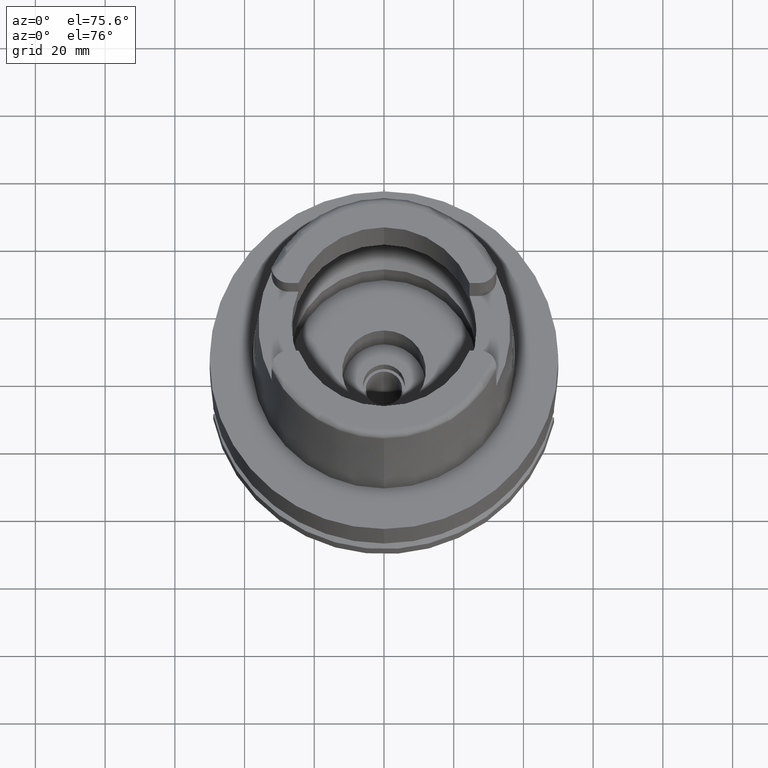
[diagram: clean part render]
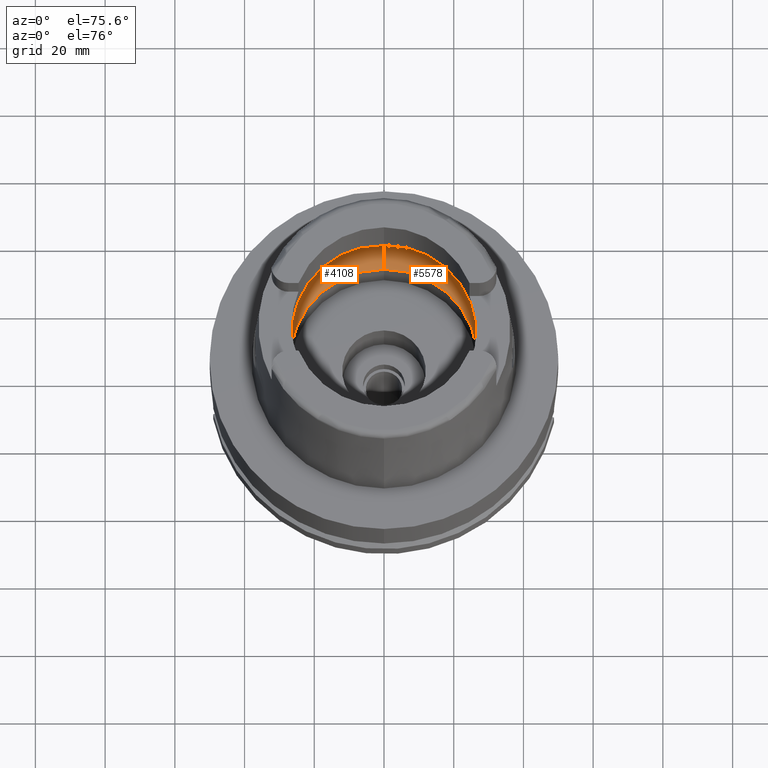
[diagram: same view with one multi-face feature highlighted, each face labeled with its STEP entity id]
A machine part, auxiliary view. The highlighted faces form ONE feature: a constant-radius fillet chain: 2 tangent blend faces with common blend radius 12 mm. The faces share edges in the B-rep.
Their STEP definitions:
[1] entity #5578 (Torus):
#360 = CARTESIAN_POINT ( 'NONE',  ( 31.40918884336000616, -2.390158196043999705, 9.496624327025999790 ) ) ;
#390 = VERTEX_POINT ( 'NONE', #919 ) ;
#447 = CARTESIAN_POINT ( 'NONE',  ( 31.40918884336000616, 2.390158196043999705, 9.496624327025999790 ) ) ;
#549 = CARTESIAN_POINT ( 'NONE',  ( 31.46287568614665986, -1.684656699965325632, 9.190219625007294724 ) ) ;
#575 = CARTESIAN_POINT ( 'NONE',  ( 31.40918884336000616, -2.390158196043999705, 9.496624327025999790 ) ) ;
#637 = CARTESIAN_POINT ( 'NONE',  ( 0.0000000000000000000, 0.0000000000000000000, 0.04993178413040000319 ) ) ;
#703 = CARTESIAN_POINT ( 'NONE',  ( 31.48971910753999026, 0.8697454017787721314, 9.000000000000001776 ) ) ;
#785 = CARTESIAN_POINT ( 'NONE',  ( 31.48971910754000447, 0.0000000000000000000, 9.000000000000000000 ) ) ;
#919 = CARTESIAN_POINT ( 'NONE',  ( 31.48971910754000447, 0.0000000000000000000, 9.000000000000000000 ) ) ;
#932 = CIRCLE ( 'NONE', #2732, 31.49999999999998934 ) ;
#1006 = CARTESIAN_POINT ( 'NONE',  ( 0.0000000000000000000, -19.50000000000000000, 9.496624327025999790 ) ) ;
#1181 = VERTEX_POINT ( 'NONE', #447 ) ;
#1224 = AXIS2_PLACEMENT_3D ( 'NONE', #5086, #2498, #2529 ) ;
#1323 = DIRECTION ( 'NONE',  ( 0.0000000000000000000, 0.0000000000000000000, 1.000000000000000000 ) ) ;
#1364 = EDGE_CURVE ( 'NONE', #5090, #4951, #4974, .T. ) ;
#1488 = VERTEX_POINT ( 'NONE', #360 ) ;
#1514 = EDGE_LOOP ( 'NONE', ( #3111, #5444, #5424, #3881, #2951, #4238, #2178 ) ) ;
#1573 = AXIS2_PLACEMENT_3D ( 'NONE', #5522, #4296, #2112 ) ;
#1604 = CARTESIAN_POINT ( 'NONE',  ( 31.46287568614665986, 1.684656700008886121, 9.190219625026216477 ) ) ;
#1658 = AXIS2_PLACEMENT_3D ( 'NONE', #5121, #1323, #4208 ) ;
#1828 = TOROIDAL_SURFACE ( 'NONE', #1658, 19.50000000000000000, 12.00000000000000000 ) ;
#1848 = EDGE_CURVE ( 'NONE', #390, #1488, #3075, .T. ) ;
#1890 = CARTESIAN_POINT ( 'NONE',  ( 31.48971910754000447, 0.0000000000000000000, 9.000000000000000000 ) ) ;
#2112 = DIRECTION ( 'NONE',  ( 0.0000000000000000000, 1.000000000000000000, 0.0000000000000000000 ) ) ;
#2178 = ORIENTED_EDGE ( 'NONE', *, *, #1848, .F. ) ;
#2293 = DIRECTION ( 'NONE',  ( -1.000000000000000000, 0.0000000000000000000, 0.0000000000000000000 ) ) ;
#2498 = DIRECTION ( 'NONE',  ( 1.000000000000000000, 0.0000000000000000000, 0.0000000000000000000 ) ) ;
#2529 = DIRECTION ( 'NONE',  ( 0.0000000000000000000, 0.6166666666667049990, -0.7872243785746061429 ) ) ;
#2537 = EDGE_CURVE ( 'NONE', #4951, #3486, #3654, .T. ) ;
#2606 = AXIS2_PLACEMENT_3D ( 'NONE', #637, #3678, #4079 ) ;
#2732 = AXIS2_PLACEMENT_3D ( 'NONE', #5235, #3933, #3991 ) ;
#2899 = VERTEX_POINT ( 'NONE', #5278 ) ;
#2950 = CARTESIAN_POINT ( 'NONE',  ( 31.40918884336000616, 2.390158196043999705, 9.496624327025999790 ) ) ;
#2951 = ORIENTED_EDGE ( 'NONE', *, *, #3897, .T. ) ;
#3034 = EDGE_CURVE ( 'NONE', #1181, #390, #4651, .T. ) ;
#3075 = B_SPLINE_CURVE_WITH_KNOTS ( 'NONE', 3,
 ( #1890, #4021, #549, #575 ),
 .UNSPECIFIED., .F., .F.,
 ( 4, 4 ),
 ( 0.0000000000000000000, 1.000000000000000000 ),
 .UNSPECIFIED. ) ;
#3111 = ORIENTED_EDGE ( 'NONE', *, *, #3034, .F. ) ;
#3486 = VERTEX_POINT ( 'NONE', #4356 ) ;
#3654 = CIRCLE ( 'NONE', #1224, 11.99999999999999822 ) ;
#3675 = CARTESIAN_POINT ( 'NONE',  ( 0.0000000000000000000, -26.89999999999999858, 0.04993178413040000319 ) ) ;
#3678 = DIRECTION ( 'NONE',  ( 0.0000000000000000000, 0.0000000000000000000, 1.000000000000000000 ) ) ;
#3881 = ORIENTED_EDGE ( 'NONE', *, *, #1364, .F. ) ;
#3897 = EDGE_CURVE ( 'NONE', #5090, #2899, #5122, .T. ) ;
#3933 = DIRECTION ( 'NONE',  ( 0.0000000000000000000, 0.0000000000000000000, -1.000000000000000000 ) ) ;
#3945 = AXIS2_PLACEMENT_3D ( 'NONE', #1006, #2293, #4977 ) ;
#3991 = DIRECTION ( 'NONE',  ( 0.9971171061384295209, -0.07587803796965221503, 0.0000000000000000000 ) ) ;
#4021 = CARTESIAN_POINT ( 'NONE',  ( 31.48971910753999026, -0.8697454017312684638, 8.999999999999998224 ) ) ;
#4079 = DIRECTION ( 'NONE',  ( 0.0000000000000000000, -1.000000000000000000, 0.0000000000000000000 ) ) ;
#4208 = DIRECTION ( 'NONE',  ( 0.0000000000000000000, 1.000000000000000000, 0.0000000000000000000 ) ) ;
#4238 = ORIENTED_EDGE ( 'NONE', *, *, #5312, .F. ) ;
#4275 = CIRCLE ( 'NONE', #1573, 31.50000000000000000 ) ;
#4296 = DIRECTION ( 'NONE',  ( 0.0000000000000000000, 0.0000000000000000000, -1.000000000000000000 ) ) ;
#4356 = CARTESIAN_POINT ( 'NONE',  ( 0.0000000000000000000, 31.50000000000000000, 9.496624327025999790 ) ) ;
#4429 = CARTESIAN_POINT ( 'NONE',  ( 0.0000000000000000000, 26.89999999999999858, 0.04993178413040000319 ) ) ;
#4651 = B_SPLINE_CURVE_WITH_KNOTS ( 'NONE', 3,
 ( #2950, #1604, #703, #785 ),
 .UNSPECIFIED., .F., .F.,
 ( 4, 4 ),
 ( 0.0000000000000000000, 1.000000000000000000 ),
 .UNSPECIFIED. ) ;
#4951 = VERTEX_POINT ( 'NONE', #4429 ) ;
#4974 = CIRCLE ( 'NONE', #2606, 26.89999999999999858 ) ;
#4977 = DIRECTION ( 'NONE',  ( 0.0000000000000000000, -0.6166666666667049990, -0.7872243785746061429 ) ) ;
#5086 = CARTESIAN_POINT ( 'NONE',  ( 0.0000000000000000000, 19.50000000000000000, 9.496624327025999790 ) ) ;
#5090 = VERTEX_POINT ( 'NONE', #3675 ) ;
#5121 = CARTESIAN_POINT ( 'NONE',  ( 0.0000000000000000000, 0.0000000000000000000, 9.496624327025999790 ) ) ;
#5122 = CIRCLE ( 'NONE', #3945, 11.99999999999999822 ) ;
#5235 = CARTESIAN_POINT ( 'NONE',  ( 0.0000000000000000000, 0.0000000000000000000, 9.496624327025999790 ) ) ;
#5278 = CARTESIAN_POINT ( 'NONE',  ( 0.0000000000000000000, -31.50000000000000000, 9.496624327025999790 ) ) ;
#5312 = EDGE_CURVE ( 'NONE', #1488, #2899, #932, .T. ) ;
#5424 = ORIENTED_EDGE ( 'NONE', *, *, #2537, .F. ) ;
#5444 = ORIENTED_EDGE ( 'NONE', *, *, #5536, .F. ) ;
#5522 = CARTESIAN_POINT ( 'NONE',  ( 0.0000000000000000000, 0.0000000000000000000, 9.496624327025999790 ) ) ;
#5536 = EDGE_CURVE ( 'NONE', #3486, #1181, #4275, .T. ) ;
#5578 = ADVANCED_FACE ( 'NONE', ( #5581 ), #1828, .F. ) ;
#5581 = FACE_OUTER_BOUND ( 'NONE', #1514, .T. ) ;
[2] entity #4108 (Torus):
#31 = EDGE_CURVE ( 'NONE', #2899, #2021, #2511, .T. ) ;
#104 = CARTESIAN_POINT ( 'NONE',  ( -31.48971910754000447, 0.8697454016785111097, 9.000000000000001776 ) ) ;
#300 = VERTEX_POINT ( 'NONE', #4122 ) ;
#367 = ORIENTED_EDGE ( 'NONE', *, *, #3897, .F. ) ;
#455 = EDGE_LOOP ( 'NONE', ( #5354, #367, #2072, #3972, #3370, #3140, #4435 ) ) ;
#702 = TOROIDAL_SURFACE ( 'NONE', #5582, 19.50000000000000000, 12.00000000000000000 ) ;
#854 = EDGE_CURVE ( 'NONE', #2021, #1708, #2129, .T. ) ;
#899 = CIRCLE ( 'NONE', #1264, 31.49999999999998934 ) ;
#920 = CARTESIAN_POINT ( 'NONE',  ( -31.48971910754000447, 0.0000000000000000000, 9.000000000000000000 ) ) ;
#925 = DIRECTION ( 'NONE',  ( 0.0000000000000000000, 0.0000000000000000000, 1.000000000000000000 ) ) ;
#1006 = CARTESIAN_POINT ( 'NONE',  ( 0.0000000000000000000, -19.50000000000000000, 9.496624327025999790 ) ) ;
#1068 = EDGE_CURVE ( 'NONE', #4951, #5090, #4430, .T. ) ;
#1070 = B_SPLINE_CURVE_WITH_KNOTS ( 'NONE', 3,
 ( #3962, #104, #1276, #2572 ),
 .UNSPECIFIED., .F., .F.,
 ( 4, 4 ),
 ( 0.0000000000000000000, 1.000000000000000000 ),
 .UNSPECIFIED. ) ;
#1113 = CARTESIAN_POINT ( 'NONE',  ( 0.0000000000000000000, 0.0000000000000000000, 9.496624327025999790 ) ) ;
#1224 = AXIS2_PLACEMENT_3D ( 'NONE', #5086, #2498, #2529 ) ;
#1264 = AXIS2_PLACEMENT_3D ( 'NONE', #1113, #4880, #2319 ) ;
#1276 = CARTESIAN_POINT ( 'NONE',  ( -31.46287568614665986, 1.684656699916923683, 9.190219624986275093 ) ) ;
#1334 = CARTESIAN_POINT ( 'NONE',  ( -31.48971910754000447, 0.0000000000000000000, 9.000000000000000000 ) ) ;
#1410 = EDGE_CURVE ( 'NONE', #300, #3486, #899, .T. ) ;
#1695 = EDGE_CURVE ( 'NONE', #1708, #300, #1070, .T. ) ;
#1708 = VERTEX_POINT ( 'NONE', #1334 ) ;
#1781 = DIRECTION ( 'NONE',  ( 0.0000000000000000000, 0.0000000000000000000, -1.000000000000000000 ) ) ;
#1816 = CARTESIAN_POINT ( 'NONE',  ( -31.40918884336000616, -2.390158196043999705, 9.496624327025999790 ) ) ;
#2021 = VERTEX_POINT ( 'NONE', #3702 ) ;
#2071 = AXIS2_PLACEMENT_3D ( 'NONE', #4149, #3263, #2295 ) ;
#2072 = ORIENTED_EDGE ( 'NONE', *, *, #1068, .F. ) ;
#2129 = B_SPLINE_CURVE_WITH_KNOTS ( 'NONE', 3,
 ( #1816, #3062, #4385, #920 ),
 .UNSPECIFIED., .F., .F.,
 ( 4, 4 ),
 ( 0.0000000000000000000, 1.000000000000000000 ),
 .UNSPECIFIED. ) ;
#2293 = DIRECTION ( 'NONE',  ( -1.000000000000000000, 0.0000000000000000000, 0.0000000000000000000 ) ) ;
#2295 = DIRECTION ( 'NONE',  ( 0.0000000000000000000, 1.000000000000000000, 0.0000000000000000000 ) ) ;
#2319 = DIRECTION ( 'NONE',  ( -0.9971171061384295209, 0.07587803796965221503, 0.0000000000000000000 ) ) ;
#2498 = DIRECTION ( 'NONE',  ( 1.000000000000000000, 0.0000000000000000000, 0.0000000000000000000 ) ) ;
#2511 = CIRCLE ( 'NONE', #2965, 31.50000000000000000 ) ;
#2529 = DIRECTION ( 'NONE',  ( 0.0000000000000000000, 0.6166666666667049990, -0.7872243785746061429 ) ) ;
#2537 = EDGE_CURVE ( 'NONE', #4951, #3486, #3654, .T. ) ;
#2572 = CARTESIAN_POINT ( 'NONE',  ( -31.40918884336000616, 2.390158196043999705, 9.496624327025999790 ) ) ;
#2899 = VERTEX_POINT ( 'NONE', #5278 ) ;
#2965 = AXIS2_PLACEMENT_3D ( 'NONE', #3044, #1781, #3504 ) ;
#3044 = CARTESIAN_POINT ( 'NONE',  ( 0.0000000000000000000, 0.0000000000000000000, 9.496624327025999790 ) ) ;
#3062 = CARTESIAN_POINT ( 'NONE',  ( -31.46287568614665986, -1.684656700028137832, 9.190219625034576012 ) ) ;
#3065 = FACE_OUTER_BOUND ( 'NONE', #455, .T. ) ;
#3140 = ORIENTED_EDGE ( 'NONE', *, *, #1695, .F. ) ;
#3263 = DIRECTION ( 'NONE',  ( 0.0000000000000000000, 0.0000000000000000000, 1.000000000000000000 ) ) ;
#3370 = ORIENTED_EDGE ( 'NONE', *, *, #1410, .F. ) ;
#3486 = VERTEX_POINT ( 'NONE', #4356 ) ;
#3504 = DIRECTION ( 'NONE',  ( 0.0000000000000000000, -1.000000000000000000, 0.0000000000000000000 ) ) ;
#3528 = CARTESIAN_POINT ( 'NONE',  ( 0.0000000000000000000, 0.0000000000000000000, 9.496624327025999790 ) ) ;
#3654 = CIRCLE ( 'NONE', #1224, 11.99999999999999822 ) ;
#3675 = CARTESIAN_POINT ( 'NONE',  ( 0.0000000000000000000, -26.89999999999999858, 0.04993178413040000319 ) ) ;
#3702 = CARTESIAN_POINT ( 'NONE',  ( -31.40918884336000616, -2.390158196043999705, 9.496624327025999790 ) ) ;
#3897 = EDGE_CURVE ( 'NONE', #5090, #2899, #5122, .T. ) ;
#3945 = AXIS2_PLACEMENT_3D ( 'NONE', #1006, #2293, #4977 ) ;
#3962 = CARTESIAN_POINT ( 'NONE',  ( -31.48971910754000447, 0.0000000000000000000, 9.000000000000000000 ) ) ;
#3972 = ORIENTED_EDGE ( 'NONE', *, *, #2537, .T. ) ;
#4108 = ADVANCED_FACE ( 'NONE', ( #3065 ), #702, .F. ) ;
#4122 = CARTESIAN_POINT ( 'NONE',  ( -31.40918884336000616, 2.390158196043999705, 9.496624327025999790 ) ) ;
#4149 = CARTESIAN_POINT ( 'NONE',  ( 0.0000000000000000000, 0.0000000000000000000, 0.04993178413040000319 ) ) ;
#4356 = CARTESIAN_POINT ( 'NONE',  ( 0.0000000000000000000, 31.50000000000000000, 9.496624327025999790 ) ) ;
#4385 = CARTESIAN_POINT ( 'NONE',  ( -31.48971910754000447, -0.8697454017997489073, 8.999999999999998224 ) ) ;
#4429 = CARTESIAN_POINT ( 'NONE',  ( 0.0000000000000000000, 26.89999999999999858, 0.04993178413040000319 ) ) ;
#4430 = CIRCLE ( 'NONE', #2071, 26.89999999999999858 ) ;
#4435 = ORIENTED_EDGE ( 'NONE', *, *, #854, .F. ) ;
#4880 = DIRECTION ( 'NONE',  ( 0.0000000000000000000, 0.0000000000000000000, -1.000000000000000000 ) ) ;
#4951 = VERTEX_POINT ( 'NONE', #4429 ) ;
#4977 = DIRECTION ( 'NONE',  ( 0.0000000000000000000, -0.6166666666667049990, -0.7872243785746061429 ) ) ;
#5086 = CARTESIAN_POINT ( 'NONE',  ( 0.0000000000000000000, 19.50000000000000000, 9.496624327025999790 ) ) ;
#5090 = VERTEX_POINT ( 'NONE', #3675 ) ;
#5122 = CIRCLE ( 'NONE', #3945, 11.99999999999999822 ) ;
#5201 = DIRECTION ( 'NONE',  ( 0.0000000000000000000, 1.000000000000000000, 0.0000000000000000000 ) ) ;
#5278 = CARTESIAN_POINT ( 'NONE',  ( 0.0000000000000000000, -31.50000000000000000, 9.496624327025999790 ) ) ;
#5354 = ORIENTED_EDGE ( 'NONE', *, *, #31, .F. ) ;
#5582 = AXIS2_PLACEMENT_3D ( 'NONE', #3528, #925, #5201 ) ;